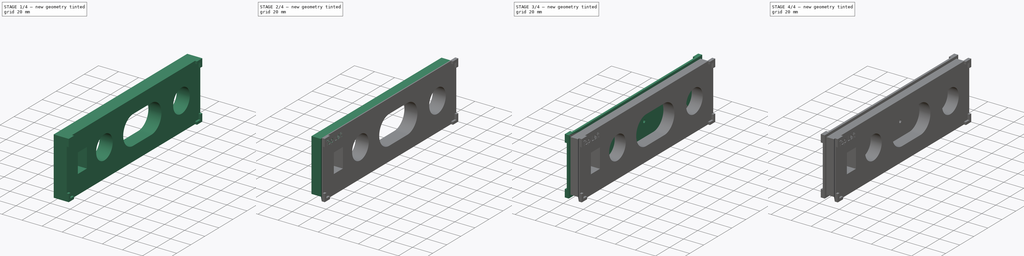
[diagram: build sequence overview — one tinted view per stage of 4, left to right]
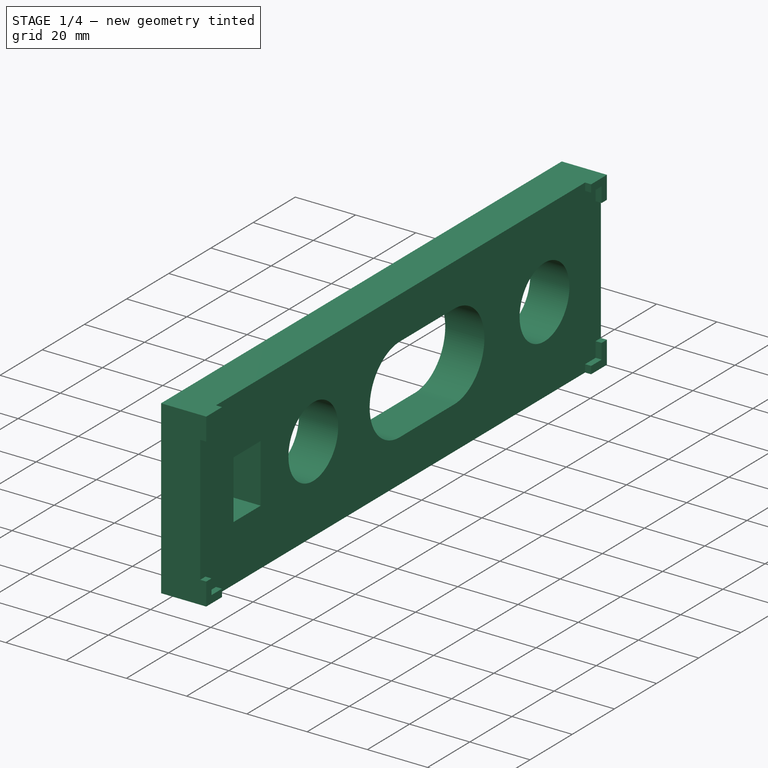
[diagram: stage 1 of 4 — iso view after this stage's code; geometry added in this stage tinted green]
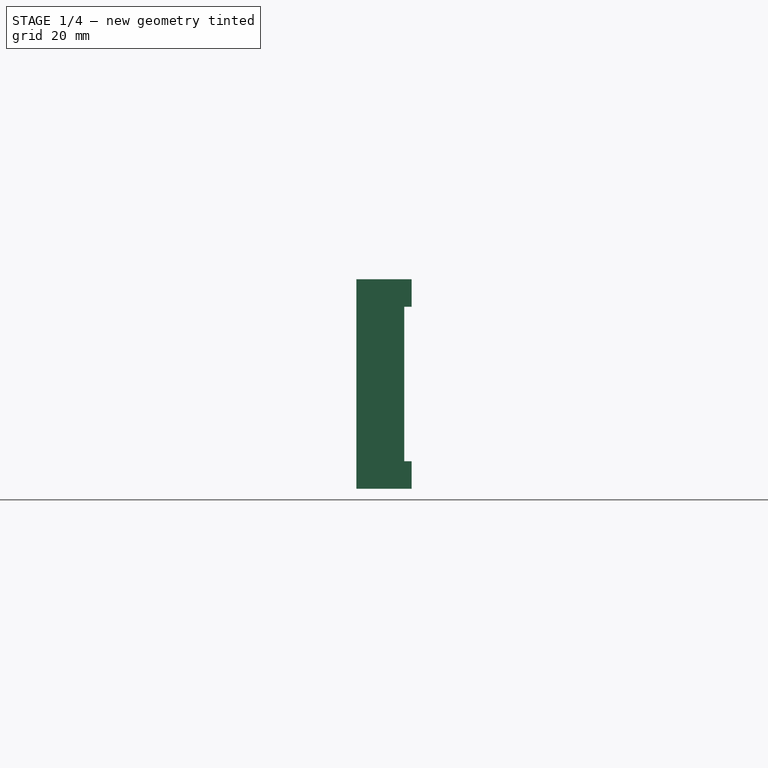
[diagram: stage 1 of 4 — front view after this stage's code; geometry added in this stage tinted green]
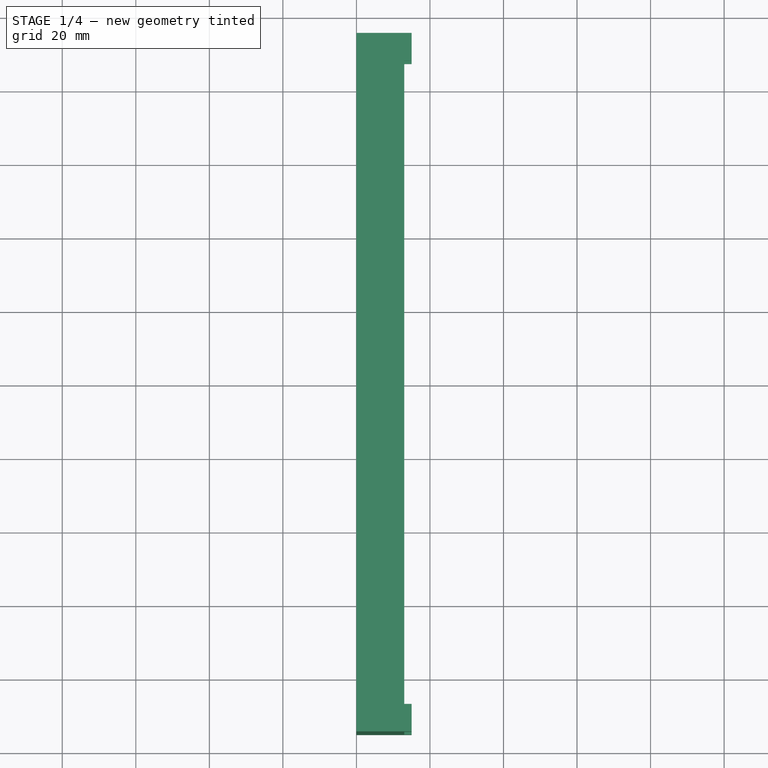
[diagram: stage 1 of 4 — top view after this stage's code; geometry added in this stage tinted green]
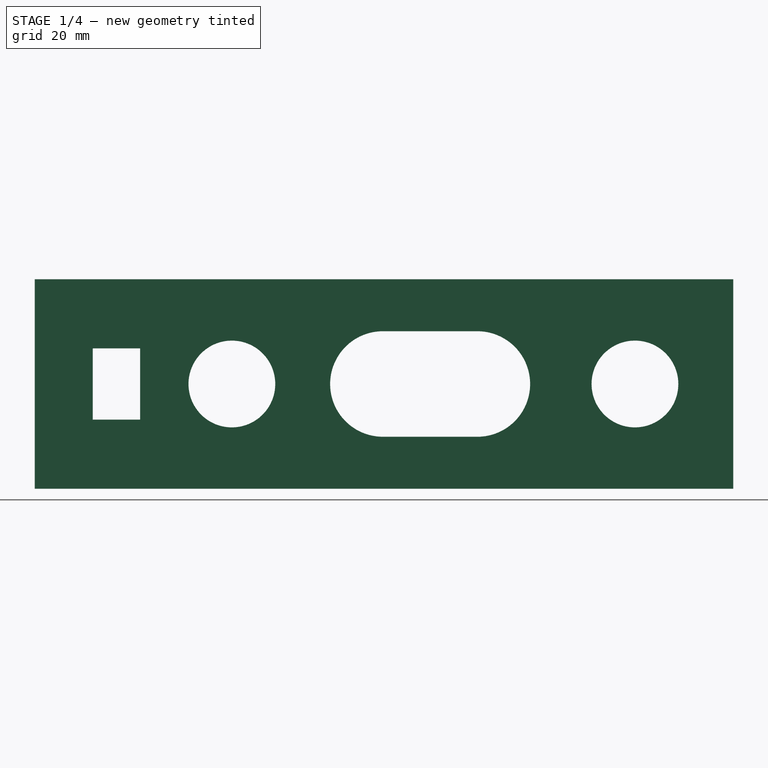
[diagram: stage 1 of 4 — right view after this stage's code; geometry added in this stage tinted green]
FCSTD DOCUMENT  (FreeCAD 0.20R29410 (Git))
Label: case-front-panel
License: All rights reserved
LicenseURL: http://en.wikipedia.org/wiki/All_rights_reserved
objects: Sketcher::SketchObject×6, PartDesign::ShapeBinder×6, PartDesign::Pad×5, PartDesign::Pocket×4, PartDesign::Body×3, Part::Part2DObjectPython×1, PartDesign::SubShapeBinder×1, PartDesign::Chamfer×1
note: 37 computed .brp shape members not serialized (recipe doc carries the construction recipe); baked Part::Feature solids carry a one-line shape summary decoded from their .brp

FEATURE [PartDesign::Body] Body001  label="DrillPlacer"
  Group = -> [ShapeBinder001,Sketch002,Pad001,Sketch003,Pad002,ShapeBinder002,Pocket001]
  Origin = -> Origin001
  Placement = pos=(3,0,0) rot=(0,0,1;0rad)
  Tip = -> Pocket001
FEATURE [PartDesign::ShapeBinder] ShapeBinder003  label="sbHoles002"
  Placement = pos=(0,0,0) rot=(0.57735,0.57735,0.57735;2.0944rad)
  Support = -> [Sketch001]
  TraceSupport = false
FEATURE [PartDesign::ShapeBinder] ShapeBinder004  label="sbHoles003"
  Placement = pos=(0,0,0) rot=(0.57735,0.57735,0.57735;2.0944rad)
  Support = -> [Sketch002]
  TraceSupport = false
FEATURE [Sketcher::SketchObject] Sketch004  label="skBase002"
  ExternalGeometry = -> [ShapeBinder004,ShapeBinder003]
  FullyConstrained = true
  MapMode = 5
  Placement = pos=(0,0,0) rot=(0.57735,0.57735,0.57735;2.0944rad)
  Support = -> [YZ_Plane002]
  sketch-geometry (14):
    g0: Circle CenterX=68.2497 CenterY=23 CenterZ=0 NormalX=0 NormalY=0 NormalZ=1 AngleXU=0 Radius=11.8
    g1: Circle CenterX=-41.3752 CenterY=23 CenterZ=0 NormalX=0 NormalY=0 NormalZ=1 AngleXU=0 Radius=11.8
    g2: ArcOfCircle CenterX=-0.303581 CenterY=23 CenterZ=0 NormalX=0 NormalY=0 NormalZ=1 AngleXU=0 Radius=14.35 StartAngle=1.5708 EndAngle=4.71239
    g3: ArcOfCircle CenterX=25.3964 CenterY=23 CenterZ=0 NormalX=0 NormalY=0 NormalZ=1 AngleXU=0 Radius=14.35 StartAngle=4.71239 EndAngle=7.85398
    g4: LineSegment StartX=-0.303581 StartY=37.35 StartZ=0 EndX=25.3964 EndY=37.35 EndZ=0
    g5: LineSegment StartX=-0.303581 StartY=8.65 StartZ=0 EndX=25.3964 EndY=8.65 EndZ=0
    g6: LineSegment StartX=-79.2293 StartY=13.3 StartZ=0 EndX=-66.3293 EndY=13.3 EndZ=0
    g7: LineSegment StartX=-66.3293 StartY=13.3 StartZ=0 EndX=-66.3293 EndY=32.7 EndZ=0
    g8: LineSegment StartX=-66.3293 StartY=32.7 StartZ=0 EndX=-79.2293 EndY=32.7 EndZ=0
    g9: LineSegment StartX=-79.2293 StartY=32.7 StartZ=0 EndX=-79.2293 EndY=13.3 EndZ=0
    g10: LineSegment StartX=-95 StartY=51.5 StartZ=0 EndX=95 EndY=51.5 EndZ=0
    g11: LineSegment StartX=95 StartY=51.5 StartZ=0 EndX=95 EndY=-5.5 EndZ=0
    g12: LineSegment StartX=95 StartY=-5.5 StartZ=0 EndX=-95 EndY=-5.5 EndZ=0
    g13: LineSegment StartX=-95 StartY=-5.5 StartZ=0 EndX=-95 EndY=51.5 EndZ=0
  constraints (34):
    c: Coincident(g0,g-8)
    c: Coincident(g1,g-5)
    c: Coincident(g2,g-6)
    c: Coincident(g2,g-6)
    c: Coincident(g2,g-6)
    c: Coincident(g3,g-7)
    c: Coincident(g3,g-7)
    c: Coincident(g3,g-7)
    c: Equal(g-8,g0)
    c: Equal(g0,g1)
    c: Coincident(g4,g2)
    c: Coincident(g4,g3)
    c: Coincident(g5,g2)
    c: Coincident(g5,g3)
    c: Coincident(g6,g7)
    c: Coincident(g7,g8)
    c: Coincident(g8,g9)
    c: Coincident(g9,g6)
    c: Horizontal(g6)
    c: Horizontal(g8)
    c: Vertical(g7)
    c: Vertical(g9)
    c: Coincident(g6,g-10)
    c: Coincident(g7,g-9)
    c: Coincident(g10,g11)
    c: Coincident(g11,g12)
    c: Coincident(g12,g13)
    c: Coincident(g13,g10)
    c: Horizontal(g10)
    c: Horizontal(g12)
    c: Vertical(g11)
    c: Vertical(g13)
    c: Coincident(g10,g-4)
    c: Coincident(g11,g-3)
FEATURE [PartDesign::Pad] Pad003  label="pdBase002"
  Direction = (1,-2e-16,3e-16)
  Length = 13
  Length2 = 10
  Placement = pos=(0,0,0) rot=(0.57735,0.57735,0.57735;2.0944rad)
  Profile = -> Sketch004
  ReferenceAxis = -> Sketch004 [N_Axis]
  Type = 0
FEATURE [PartDesign::ShapeBinder] ShapeBinder005  label="sbErgots"
  Placement = pos=(0,0,0) rot=(0.57735,0.57735,0.57735;2.0944rad)
  Support = -> [Sketch003]
  TraceSupport = false
FEATURE [PartDesign::Pad] Pad004  label="pdErgots001"
  BaseFeature = -> Pad003
  Direction = (1,0,1e-16)
  Length = 15
  Length2 = 10
  Placement = pos=(0,0,0) rot=(0.57735,0.57735,0.57735;2.0944rad)
  Profile = -> ShapeBinder005
  Refine = true
  Type = 0
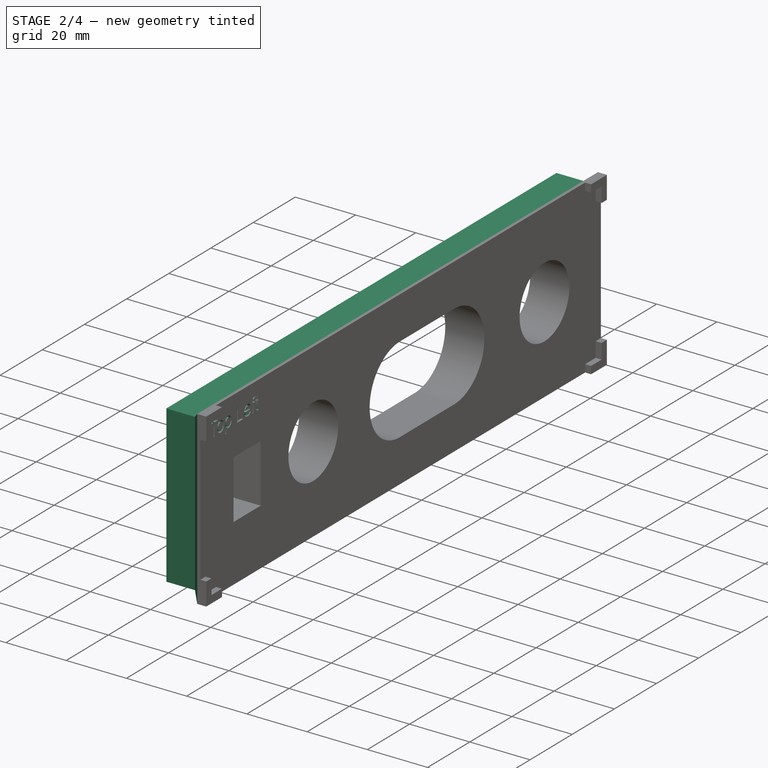
[diagram: stage 2 of 4 — iso view after this stage's code; geometry added in this stage tinted green]
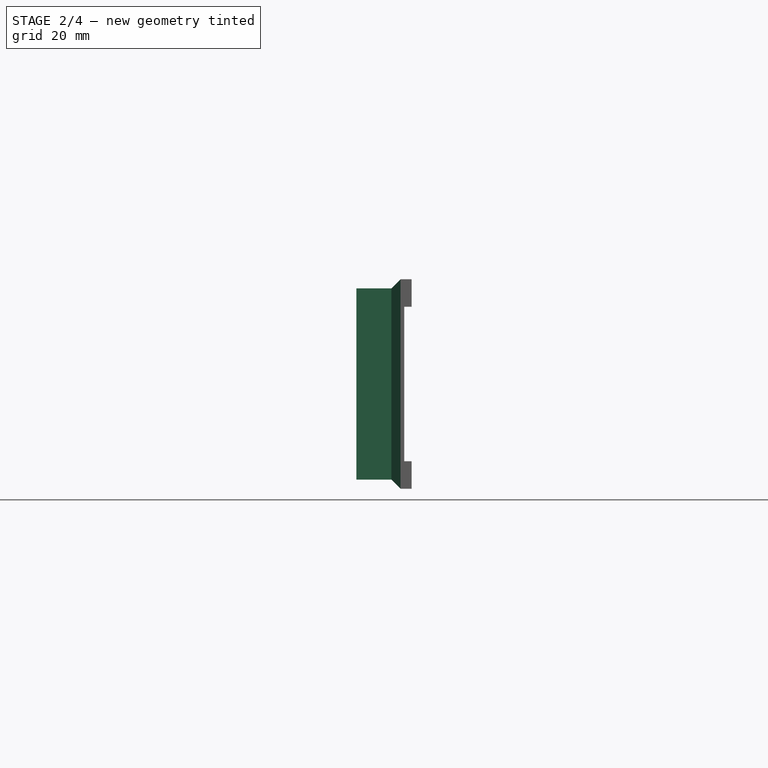
[diagram: stage 2 of 4 — front view after this stage's code; geometry added in this stage tinted green]
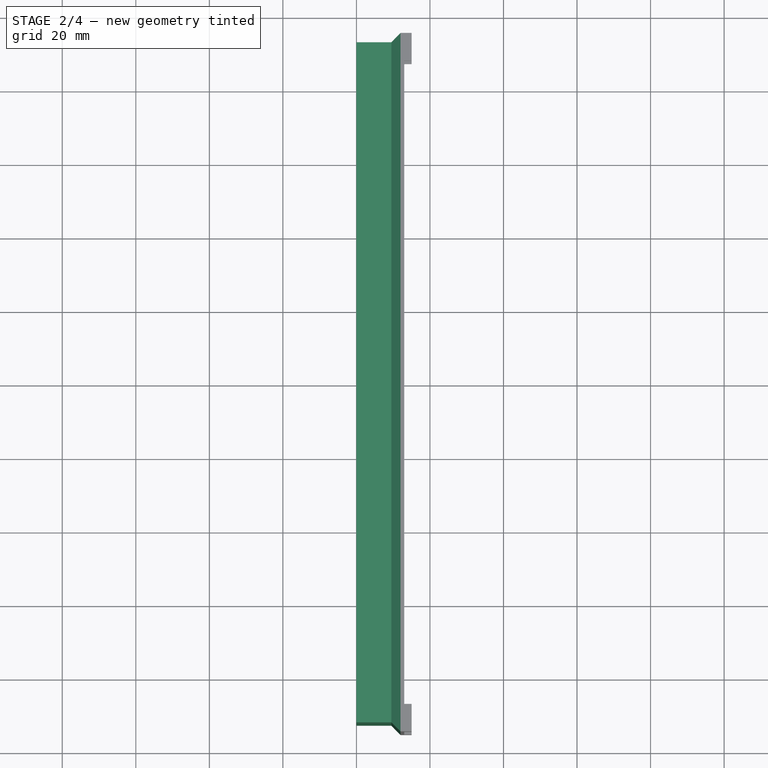
[diagram: stage 2 of 4 — top view after this stage's code; geometry added in this stage tinted green]
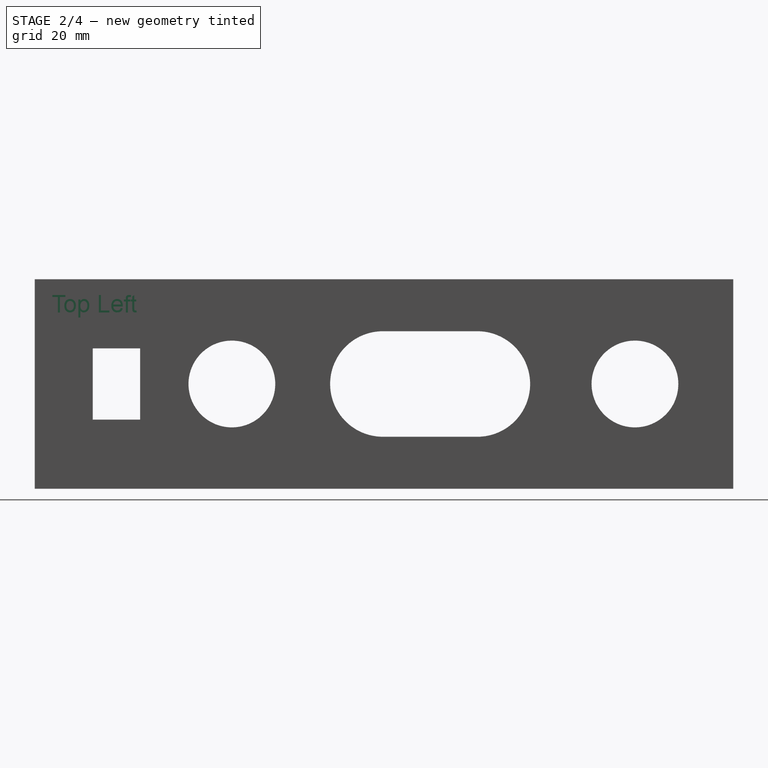
[diagram: stage 2 of 4 — right view after this stage's code; geometry added in this stage tinted green]
FEATURE [PartDesign::SubShapeBinder] Binder  label="bTopLeft"
  BindCopyOnChange = 0
  BindMode = 0
  ClaimChildren = false
  Context = -> Body002 [Binder.]
  Fuse = false
  MakeFace = true
  OffsetFill = false
  OffsetIntersection = false
  OffsetJoinType = 0
  OffsetOpenResult = false
  PartialLoad = false
  Placement = pos=(-5,0,0) rot=(0,0,1;0rad)
  Relative = true
  Support = -> [ShapeString]
  _Version = 2
FEATURE [PartDesign::Pocket] Pocket002  label="pkTopLeft001"
  BaseFeature = -> Pad004
  Direction = (-1,0,0)
  Length = 1.7
  Length2 = 5
  Placement = pos=(0,0,0) rot=(0.57735,0.57735,0.57735;2.0944rad)
  Profile = -> Binder
  Type = 0
FEATURE [Sketcher::SketchObject] Sketch005  label="skOuterProfile"
  ExternalGeometry = -> [ShapeBinder005]
  FullyConstrained = true
  MapMode = 5
  Placement = pos=(0,0,0) rot=(0.57735,0.57735,0.57735;2.0944rad)
  Support = -> [YZ_Plane002]
  sketch-geometry (10):
    g0: LineSegment StartX=-97.5 StartY=54 StartZ=0 EndX=97.5 EndY=54 EndZ=0
    g1: LineSegment StartX=97.5 StartY=54 StartZ=0 EndX=97.5 EndY=-8 EndZ=0
    g2: LineSegment StartX=97.5 StartY=-8 StartZ=0 EndX=-97.5 EndY=-8 EndZ=0
    g3: LineSegment StartX=-97.5 StartY=-8 StartZ=0 EndX=-97.5 EndY=54 EndZ=0
    g4: LineSegment StartX=-92.5 StartY=49 StartZ=0 EndX=92.5 EndY=49 EndZ=0
    g5: LineSegment StartX=92.5 StartY=49 StartZ=0 EndX=92.5 EndY=-3 EndZ=0
    g6: LineSegment StartX=92.5 StartY=-3 StartZ=0 EndX=-92.5 EndY=-3 EndZ=0
    g7: LineSegment StartX=-92.5 StartY=-3 StartZ=0 EndX=-92.5 EndY=49 EndZ=0
    g8: Circle CenterX=92.5 CenterY=49 CenterZ=0 NormalX=0 NormalY=0 NormalZ=1 AngleXU=0 Radius=5
    g9: Circle CenterX=-92.5 CenterY=-3 CenterZ=0 NormalX=0 NormalY=0 NormalZ=1 AngleXU=0 Radius=5
  constraints (26):
    c: Coincident(g0,g1)
    c: Coincident(g1,g2)
    c: Coincident(g2,g3)
    c: Coincident(g3,g0)
    c: Horizontal(g0)
    c: Horizontal(g2)
    c: Vertical(g1)
    c: Vertical(g3)
    c: Coincident(g4,g5)
    c: Coincident(g5,g6)
    c: Coincident(g6,g7)
    c: Coincident(g7,g4)
    c: Horizontal(g4)
    c: Horizontal(g6)
    c: Vertical(g5)
    c: Vertical(g7)
    c: Coincident(g6,g-4)
    c: Coincident(g4,g-3)
    c: Coincident(g8,g4)
    c: Coincident(g9,g6)
    c: Tangent(g9,g2)
    c: Tangent(g9,g3)
    c: Tangent(g8,g0)
    c: Tangent(g8,g1)
    c: Equal(g8,g9)
    c: Diameter(g8) = 10
FEATURE [PartDesign::Pocket] Pocket003  label="pkOuterProfile"
  BaseFeature = -> Pocket002
  Direction = (-1,2e-16,-3e-16)
  Length = 12
  Length2 = 5
  Placement = pos=(0,0,0) rot=(0.57735,0.57735,0.57735;2.0944rad)
  Profile = -> Sketch005
  ReferenceAxis = -> Sketch005 [N_Axis]
  Reversed = true
  Type = 0
FEATURE [PartDesign::Chamfer] Chamfer  label="chSupport"
  Angle = 45
  Base = -> Pocket003 [Edge382,Edge381,Edge379,Edge380]
  BaseFeature = -> Pocket003
  ChamferType = 0
  FlipDirection = false
  Placement = pos=(0,0,0) rot=(0.57735,0.57735,0.57735;2.0944rad)
  Size = 2.49
  Size2 = 1
  SupportTransform = false
  UseAllEdges = false
FEATURE [PartDesign::Body] Body002  label="RouterGuide"
  Group = -> [ShapeBinder003,ShapeBinder004,Sketch004,Pad003,ShapeBinder005,Pad004,Binder,Pocket002,Sketch005,Pocket003,Chamfer]
  Origin = -> Origin002
  Placement = pos=(-13,0,0) rot=(0,0,1;0rad)
  Tip = -> Chamfer
note: 1 file-system path scrubbed to <path> (originals preserved in the JSON sidecar)
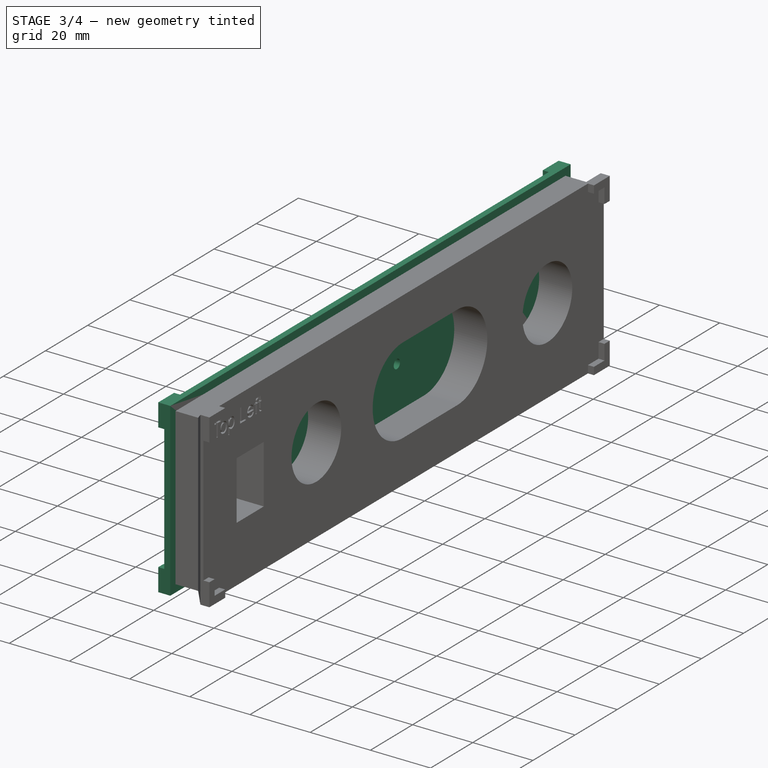
[diagram: stage 3 of 4 — iso view after this stage's code; geometry added in this stage tinted green]
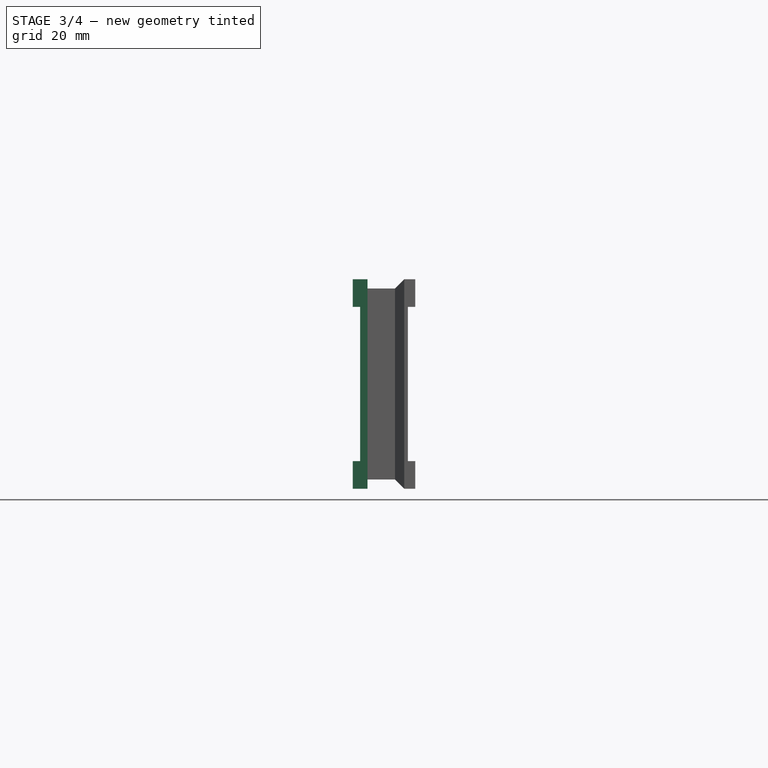
[diagram: stage 3 of 4 — front view after this stage's code; geometry added in this stage tinted green]
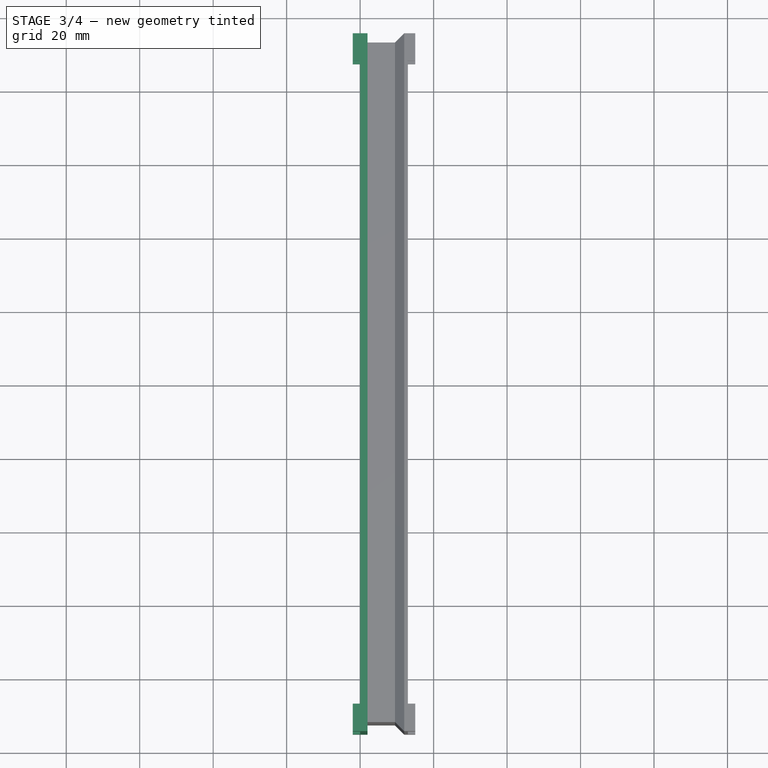
[diagram: stage 3 of 4 — top view after this stage's code; geometry added in this stage tinted green]
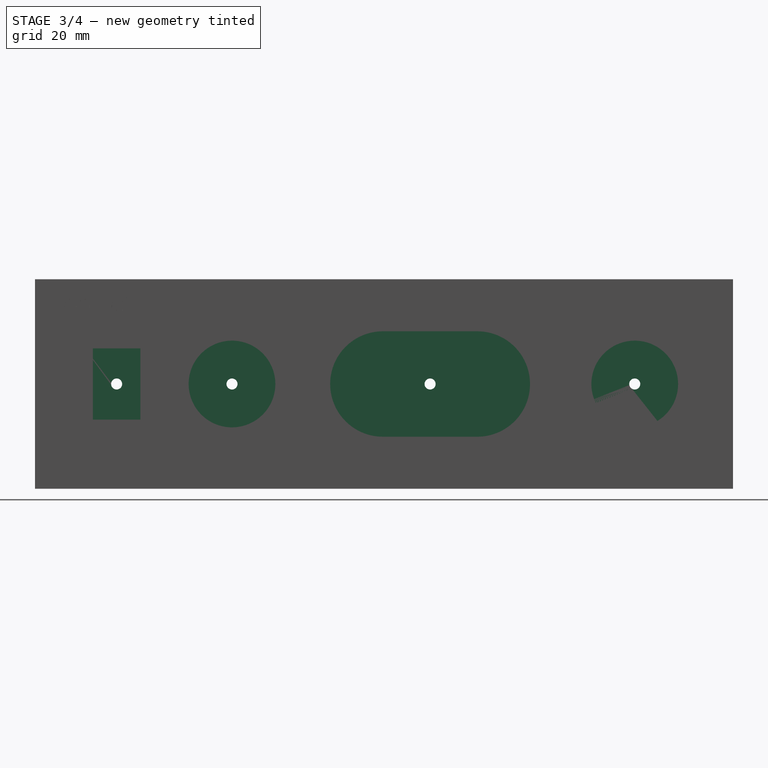
[diagram: stage 3 of 4 — right view after this stage's code; geometry added in this stage tinted green]
FEATURE [PartDesign::Body] Body
  Group = -> [Sketch001,Sketch,Pad,ShapeBinder,Pocket]
  Origin = -> Origin
  Tip = -> Pocket
FEATURE [PartDesign::ShapeBinder] ShapeBinder001  label="sbHoles001"
  Placement = pos=(0,0,0) rot=(0.57735,0.57735,0.57735;2.0944rad)
  Support = -> [Sketch001]
  TraceSupport = false
FEATURE [Sketcher::SketchObject] Sketch002  label="skBase001"
  ExternalGeometry = -> [ShapeBinder001]
  FullyConstrained = true
  MapMode = 5
  Placement = pos=(0,0,0) rot=(0.57735,0.57735,0.57735;2.0944rad)
  Support = -> [YZ_Plane001]
  sketch-geometry (20):
    g0: LineSegment StartX=-95 StartY=51.5 StartZ=0 EndX=95 EndY=51.5 EndZ=0
    g1: LineSegment StartX=95 StartY=51.5 StartZ=0 EndX=95 EndY=-5.5 EndZ=0
    g2: LineSegment StartX=95 StartY=-5.5 StartZ=0 EndX=-95 EndY=-5.5 EndZ=0
    g3: LineSegment StartX=-95 StartY=-5.5 StartZ=0 EndX=-95 EndY=51.5 EndZ=0
    g4: Circle CenterX=58.7497 CenterY=35 CenterZ=0 NormalX=0 NormalY=0 NormalZ=1 AngleXU=0 Radius=1.5
    g5: Circle CenterX=68.2497 CenterY=23 CenterZ=0 NormalX=0 NormalY=0 NormalZ=1 AngleXU=0 Radius=1.5
    g6: Circle CenterX=77.7497 CenterY=11 CenterZ=0 NormalX=0 NormalY=0 NormalZ=1 AngleXU=0 Radius=1.5
    g7: Circle CenterX=37.5464 CenterY=10.8 CenterZ=0 NormalX=0 NormalY=0 NormalZ=1 AngleXU=0 Radius=1.5
    g8: Circle CenterX=37.5464 CenterY=35.2 CenterZ=0 NormalX=0 NormalY=0 NormalZ=1 AngleXU=0 Radius=1.5
    g9: Circle CenterX=-12.4536 CenterY=35.2 CenterZ=0 NormalX=0 NormalY=0 NormalZ=1 AngleXU=0 Radius=1.5
    g10: Circle CenterX=-12.4536 CenterY=10.8 CenterZ=0 NormalX=0 NormalY=0 NormalZ=1 AngleXU=0 Radius=1.5
    g11: Circle CenterX=-31.8752 CenterY=11 CenterZ=0 NormalX=0 NormalY=0 NormalZ=1 AngleXU=0 Radius=1.5
    g12: Circle CenterX=-50.8752 CenterY=35 CenterZ=0 NormalX=0 NormalY=0 NormalZ=1 AngleXU=0 Radius=1.5
    g13: Circle CenterX=-41.3752 CenterY=23 CenterZ=0 NormalX=0 NormalY=0 NormalZ=1 AngleXU=0 Radius=1.5
    g14: LineSegment StartX=-79.2293 StartY=32.7 StartZ=0 EndX=-66.3293 EndY=13.3 EndZ=0
    g15: LineSegment StartX=-66.3293 StartY=32.7 StartZ=0 EndX=-79.2293 EndY=13.3 EndZ=0
    g16: Circle CenterX=-72.7793 CenterY=23 CenterZ=0 NormalX=0 NormalY=0 NormalZ=1 AngleXU=0 Radius=1.5
    g17: LineSegment StartX=-0.303581 StartY=37.35 StartZ=0 EndX=25.3964 EndY=8.65 EndZ=0
    g18: LineSegment StartX=25.3964 StartY=37.35 StartZ=0 EndX=-0.303581 EndY=8.65 EndZ=0
    g19: Circle CenterX=12.5464 CenterY=23 CenterZ=0 NormalX=0 NormalY=0 NormalZ=1 AngleXU=0 Radius=1.5
  constraints (45):
    c: Coincident(g0,g1)
    c: Coincident(g1,g2)
    c: Coincident(g2,g3)
    c: Coincident(g3,g0)
    c: Horizontal(g2)
    c: Vertical(g1)
    c: Vertical(g3)
    c: Distance(g0) = 190
    c: Distance(g1) = 57
    c: Symmetric(g0,g0,g-2)
    c: DistanceY(g-1,g1) = -5.5
    c: Coincident(g4,g-4)
    c: Coincident(g5,g-3)
    c: Coincident(g6,g-5)
    c: Coincident(g7,g-11)
    c: Coincident(g8,g-7)
    c: Coincident(g9,g-9)
    c: Coincident(g10,g-10)
    c: Coincident(g11,g-14)
    c: Coincident(g12,g-13)
    c: Coincident(g13,g-12)
    c: Coincident(g14,g-16)
    c: Coincident(g15,g-15)
    c: Coincident(g15,g-16)
    c: Coincident(g14,g-15)
    c: PointOnObject(g16,g14)
    c: PointOnObject(g16,g15)
    c: Coincident(g17,g-8)
    c: Coincident(g17,g-6)
    c: Coincident(g18,g-6)
    c: Coincident(g18,g-8)
    c: PointOnObject(g19,g17)
    c: PointOnObject(g19,g18)
    c: Equal(g6,g5)
    c: Equal(g6,g4)
    c: Equal(g6,g7)
    c: Equal(g6,g8)
    c: Equal(g6,g19)
    c: Equal(g6,g9)
    c: Equal(g6,g10)
    c: Equal(g6,g11)
    c: Equal(g6,g13)
    c: Equal(g6,g12)
    c: Equal(g6,g16)
    c: Diameter(g6) = 3
FEATURE [PartDesign::Pad] Pad001  label="pdBase001"
  Direction = (1,-2e-16,3e-16)
  Length = 2
  Length2 = 10
  Placement = pos=(0,0,0) rot=(0.57735,0.57735,0.57735;2.0944rad)
  Profile = -> Sketch002
  ReferenceAxis = -> Sketch002 [N_Axis]
  Type = 0
FEATURE [Sketcher::SketchObject] Sketch003  label="skErgots"
  ExternalGeometry = -> [Sketch002]
  FullyConstrained = true
  MapMode = 5
  Placement = pos=(0,0,0) rot=(0.57735,0.57735,0.57735;2.0944rad)
  Support = -> [YZ_Plane001]
  sketch-geometry (24):
    g0: LineSegment StartX=95 StartY=51.5 StartZ=0 EndX=95 EndY=44 EndZ=0
    g1: LineSegment StartX=95 StartY=44 StartZ=0 EndX=92.5 EndY=44 EndZ=0
    g2: LineSegment StartX=92.5 StartY=44 StartZ=0 EndX=92.5 EndY=49 EndZ=0
    g3: LineSegment StartX=92.5 StartY=49 StartZ=0 EndX=87.5 EndY=49 EndZ=0
    g4: LineSegment StartX=87.5 StartY=49 StartZ=0 EndX=87.5 EndY=51.5 EndZ=0
    g5: LineSegment StartX=87.5 StartY=51.5 StartZ=0 EndX=95 EndY=51.5 EndZ=0
    g6: LineSegment StartX=-95 StartY=51.5 StartZ=0 EndX=-87.5 EndY=51.5 EndZ=0
    g7: LineSegment StartX=-87.5 StartY=51.5 StartZ=0 EndX=-87.5 EndY=49 EndZ=0
    g8: LineSegment StartX=-87.5 StartY=49 StartZ=0 EndX=-92.5 EndY=49 EndZ=0
    g9: LineSegment StartX=-92.5 StartY=49 StartZ=0 EndX=-92.5 EndY=44 EndZ=0
    g10: LineSegment StartX=-92.5 StartY=44 StartZ=0 EndX=-95 EndY=44 EndZ=0
    g11: LineSegment StartX=-95 StartY=44 StartZ=0 EndX=-95 EndY=51.5 EndZ=0
    g12: LineSegment StartX=-95 StartY=-5.5 StartZ=0 EndX=-95 EndY=2 EndZ=0
    g13: LineSegment StartX=-95 StartY=2 StartZ=0 EndX=-92.5 EndY=2 EndZ=0
    g14: LineSegment StartX=-92.5 StartY=2 StartZ=0 EndX=-92.5 EndY=-3 EndZ=0
    g15: LineSegment StartX=-92.5 StartY=-3 StartZ=0 EndX=-87.5 EndY=-3 EndZ=0
    g16: LineSegment StartX=-87.5 StartY=-3 StartZ=0 EndX=-87.5 EndY=-5.5 EndZ=0
    g17: LineSegment StartX=-87.5 StartY=-5.5 StartZ=0 EndX=-95 EndY=-5.5 EndZ=0
    g18: LineSegment StartX=95 StartY=-5.5 StartZ=0 EndX=87.5 EndY=-5.5 EndZ=0
    g19: LineSegment StartX=87.5 StartY=-5.5 StartZ=0 EndX=87.5 EndY=-3 EndZ=0
    g20: LineSegment StartX=87.5 StartY=-3 StartZ=0 EndX=92.5 EndY=-3 EndZ=0
    g21: LineSegment StartX=92.5 StartY=-3 StartZ=0 EndX=92.5 EndY=2 EndZ=0
    g22: LineSegment StartX=92.5 StartY=2 StartZ=0 EndX=95 EndY=2 EndZ=0
    g23: LineSegment StartX=95 StartY=2 StartZ=0 EndX=95 EndY=-5.5 EndZ=0
  constraints (68):
    c: Coincident(g-3,g0)
    c: PointOnObject(g0,g-3)
    c: Coincident(g0,g1)
    c: Coincident(g1,g2)
    c: Vertical(g2)
    c: Coincident(g2,g3)
    c: Horizontal(g3)
    c: Coincident(g3,g4)
    c: Vertical(g4)
    c: Coincident(g4,g5)
    c: Coincident(g5,g0)
    c: Horizontal(g5)
    c: Coincident(g-4,g6)
    c: Horizontal(g6)
    c: Coincident(g6,g7)
    c: Vertical(g7)
    c: Coincident(g7,g8)
    c: Horizontal(g8)
    c: Coincident(g8,g9)
    c: Vertical(g9)
    c: Coincident(g9,g10)
    c: PointOnObject(g10,g-4)
    c: Coincident(g10,g11)
    c: Coincident(g-4,g12)
    c: PointOnObject(g12,g-4)
    c: Coincident(g12,g13)
    c: Horizontal(g13)
    c: Coincident(g13,g14)
    c: Vertical(g14)
    c: Coincident(g14,g15)
    c: Horizontal(g15)
    c: Coincident(g15,g16)
    c: Coincident(g16,g17)
    c: Coincident(g17,g12)
    c: Horizontal(g17)
    c: Coincident(g-3,g18)
    c: Horizontal(g18)
    c: Coincident(g18,g19)
    c: Vertical(g19)
    c: Coincident(g19,g20)
    c: Horizontal(g20)
    c: Coincident(g20,g21)
    c: Vertical(g21)
    c: Coincident(g21,g22)
    c: PointOnObject(g22,g-3)
    c: Horizontal(g22)
    c: Coincident(g22,g23)
    c: Coincident(g23,g18)
    c: Horizontal(g1)
    c: Coincident(g11,g6)
    c: Horizontal(g10)
    c: Vertical(g16)
    c: Equal(g13,g16)
    c: Equal(g16,g10)
    c: Equal(g10,g7)
    c: Equal(g7,g4)
    c: Equal(g4,g1)
    c: Equal(g1,g22)
    c: Equal(g22,g19)
    c: Equal(g21,g20)
    c: Equal(g20,g2)
    c: Equal(g2,g3)
    c: Equal(g3,g8)
    c: Equal(g8,g9)
    c: Equal(g9,g14)
    c: Equal(g14,g15)
    c: Distance(g7) = 2.5
    c: Distance(g8) = 5
FEATURE [PartDesign::Pad] Pad002  label="pdErgots"
  BaseFeature = -> Pad001
  Direction = (1,-2e-16,3e-16)
  Length = 2
  Length2 = 10
  Placement = pos=(0,0,0) rot=(0.57735,0.57735,0.57735;2.0944rad)
  Profile = -> Sketch003
  ReferenceAxis = -> Sketch003 [N_Axis]
  Refine = true
  Reversed = true
  Type = 0
FEATURE [Part::Part2DObjectPython] ShapeString  label="ssTopLeft"  # Draft 2D object (typed FeaturePython)
  FontFile = <path>
  MakeFace = true
  Placement = pos=(5.7,-90.33,42.46) rot=(0.57735,0.57735,0.57735;2.0944rad)
  Size = 5
  String = Top Left
  Tracking = 0
FEATURE [PartDesign::ShapeBinder] ShapeBinder002  label="sbTopLeft"
  Placement = pos=(5.7,-90.33,42.46) rot=(0.57735,0.57735,0.57735;2.0944rad)
  Support = -> [ShapeString]
  TraceSupport = false
FEATURE [PartDesign::Pocket] Pocket001  label="pkTopLeft"
  BaseFeature = -> Pad002
  Direction = (-1,0,0)
  Length = 4.5
  Length2 = 5
  Placement = pos=(0,0,0) rot=(0.57735,0.57735,0.57735;2.0944rad)
  Profile = -> ShapeBinder002
  Type = 0
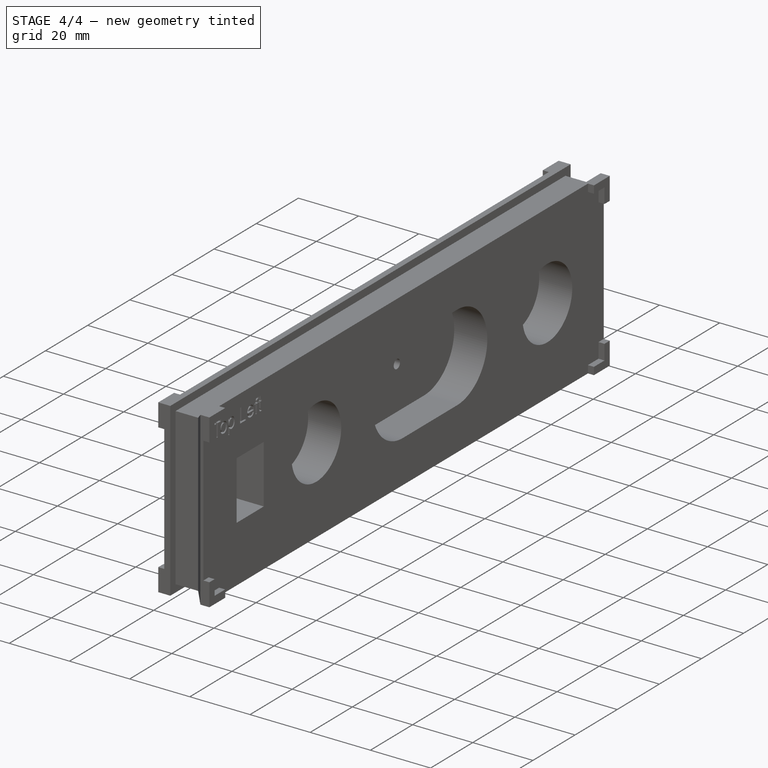
[diagram: stage 4 of 4 — iso view after this stage's code; geometry added in this stage tinted green]
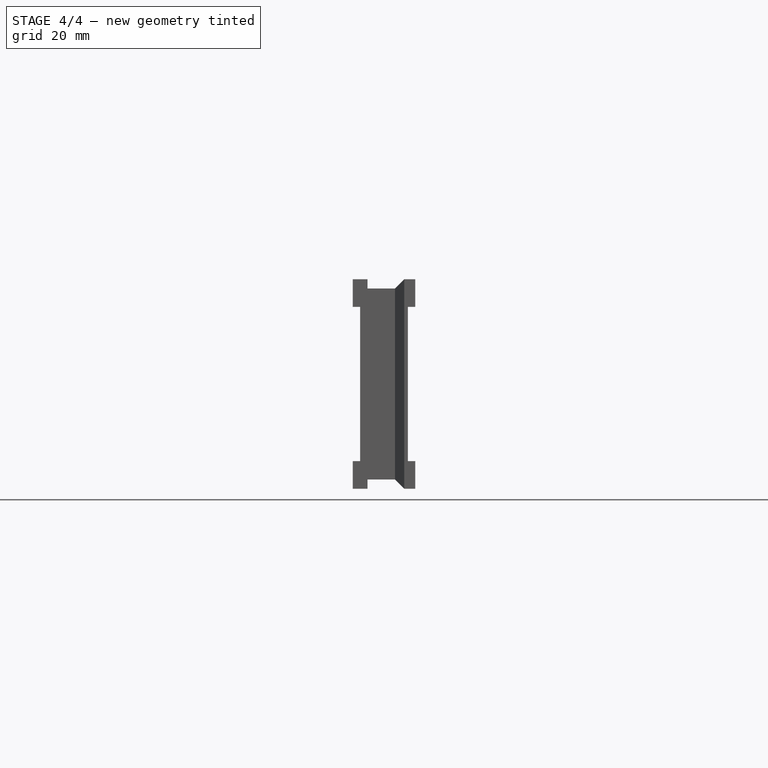
[diagram: stage 4 of 4 — front view after this stage's code; geometry added in this stage tinted green]
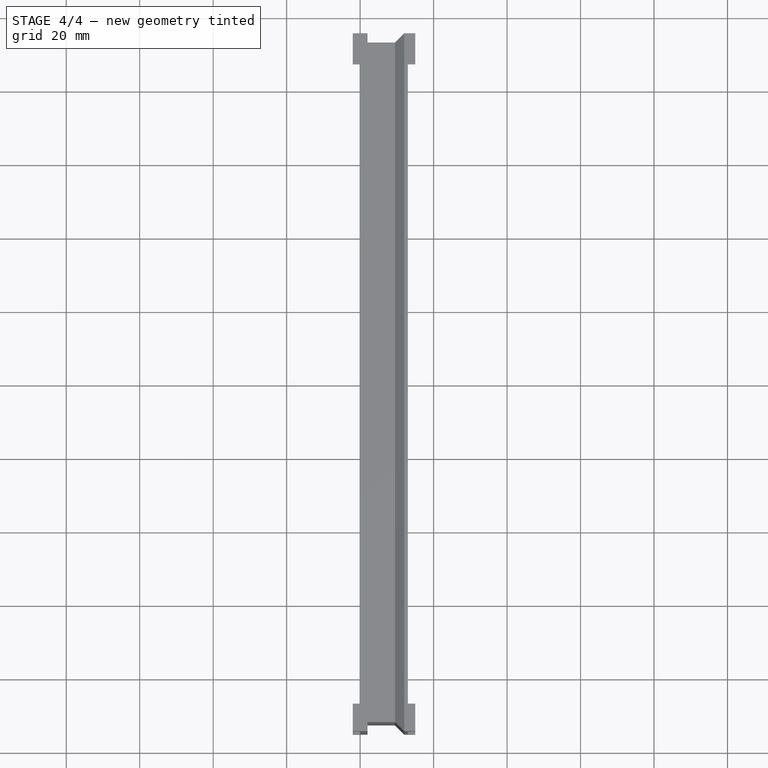
[diagram: stage 4 of 4 — top view after this stage's code; geometry added in this stage tinted green]
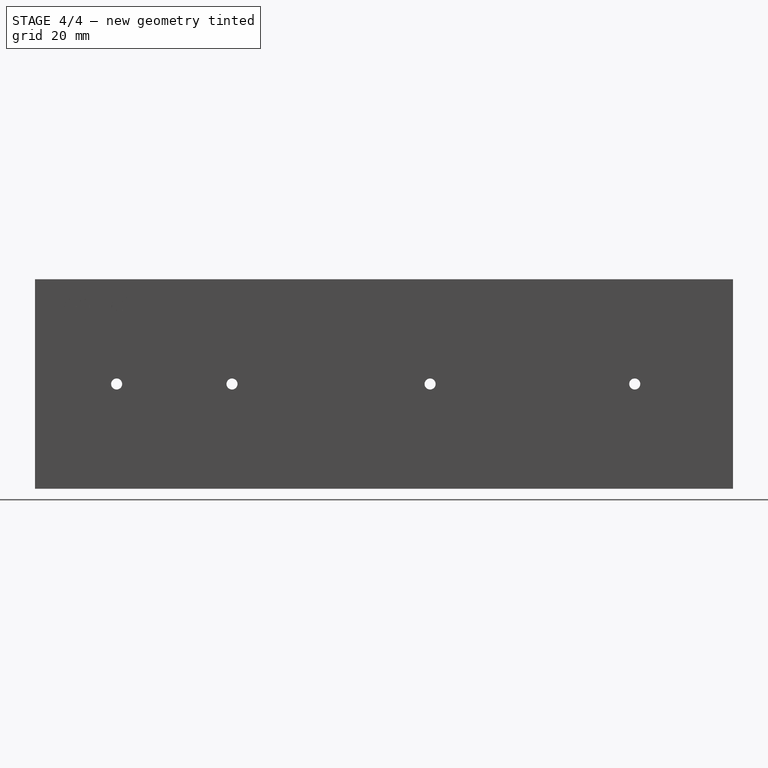
[diagram: stage 4 of 4 — right view after this stage's code; geometry added in this stage tinted green]
FEATURE [Sketcher::SketchObject] Sketch001  label="skHoles"
  FullyConstrained = false
  MapMode = 5
  Placement = pos=(0,0,0) rot=(0.57735,0.57735,0.57735;2.0944rad)
  Support = -> [YZ_Plane]
  sketch-geometry (20):
    g0: Circle CenterX=68.2497 CenterY=23 CenterZ=0 NormalX=0 NormalY=0 NormalZ=1 AngleXU=0 Radius=11.8
    g1: Circle CenterX=58.7497 CenterY=35 CenterZ=0 NormalX=0 NormalY=0 NormalZ=1 AngleXU=0 Radius=1.55
    g2: Circle CenterX=77.7497 CenterY=11 CenterZ=0 NormalX=0 NormalY=0 NormalZ=1 AngleXU=0 Radius=1.55
    g3: ArcOfCircle CenterX=25.3964 CenterY=23 CenterZ=0 NormalX=0 NormalY=0 NormalZ=1 AngleXU=0 Radius=14.35 StartAngle=4.71239 EndAngle=7.85398
    g4: ArcOfCircle CenterX=-0.303581 CenterY=23 CenterZ=0 NormalX=0 NormalY=0 NormalZ=1 AngleXU=0 Radius=14.35 StartAngle=1.5708 EndAngle=4.71239
    g5: Circle CenterX=-41.3752 CenterY=23 CenterZ=0 NormalX=0 NormalY=0 NormalZ=1 AngleXU=0 Radius=11.8
    g6: Circle CenterX=-31.8752 CenterY=11 CenterZ=0 NormalX=0 NormalY=0 NormalZ=1 AngleXU=0 Radius=1.55
    g7: Circle CenterX=-50.8752 CenterY=35 CenterZ=0 NormalX=0 NormalY=0 NormalZ=1 AngleXU=0 Radius=1.55
    g8: LineSegment StartX=-79.2293 StartY=32.7 StartZ=0 EndX=-66.3293 EndY=32.7 EndZ=0
    g9: LineSegment StartX=-66.3293 StartY=32.7 StartZ=0 EndX=-66.3293 EndY=13.3 EndZ=0
    g10: LineSegment StartX=-66.3293 StartY=13.3 StartZ=0 EndX=-79.2293 EndY=13.3 EndZ=0
    g11: LineSegment StartX=-79.2293 StartY=13.3 StartZ=0 EndX=-79.2293 EndY=32.7 EndZ=0
    g12: LineSegment StartX=-0.303581 StartY=37.35 StartZ=0 EndX=25.3964 EndY=37.35 EndZ=0
    g13: LineSegment StartX=-0.303581 StartY=8.65 StartZ=0 EndX=25.3964 EndY=8.65 EndZ=0
    g14: LineSegment StartX=92.5 StartY=23 StartZ=0 EndX=-92.5 EndY=23 EndZ=0
    g15: Circle CenterX=-12.4536 CenterY=35.2 CenterZ=0 NormalX=0 NormalY=0 NormalZ=1 AngleXU=0 Radius=1.6
    g16: Circle CenterX=-12.4536 CenterY=10.8 CenterZ=0 NormalX=0 NormalY=0 NormalZ=1 AngleXU=0 Radius=1.6
    g17: Circle CenterX=37.5464 CenterY=10.8 CenterZ=0 NormalX=0 NormalY=0 NormalZ=1 AngleXU=0 Radius=1.6
    g18: Circle CenterX=37.5464 CenterY=35.2 CenterZ=0 NormalX=0 NormalY=0 NormalZ=1 AngleXU=0 Radius=1.6
    g19: GeomPoint X=12.5464 Y=23 Z=0
  constraints (48):
    c: Coincident(g8,g9)
    c: Coincident(g9,g10)
    c: Coincident(g10,g11)
    c: Coincident(g11,g8)
    c: Horizontal(g8)
    c: Horizontal(g10)
    c: Vertical(g11)
    c: PointOnObject(g3,g14)
    c: PointOnObject(g4,g14)
    c: PointOnObject(g5,g14)
    c: Symmetric(g8,g9,g14)
    c: PointOnObject(g0,g14)
    c: Symmetric(g1,g2,g0)
    c: Symmetric(g7,g6,g5)
    c: Tangent(g12,g4) = 1.5708
    c: Tangent(g13,g4) = -1.5708
    c: Tangent(g13,g3) = -1.5708
    c: Tangent(g12,g3) = 1.5708
    c: Equal(g3,g4)
    c: Diameter(g4) = 28.7
    c: Distance(g3,g4) = 25.7
    c: Equal(g15,g16)
    c: Equal(g15,g17)
    c: Equal(g15,g18)
    c: Diameter(g15) = 3.2
    c: Distance(g17,g18) = 24.4
    c: Horizontal(g15,g18)
    c: Horizontal(g17,g16)
    c: Vertical(g15,g16)
    c: Distance(g16,g17) = 50
    c: Symmetric(g15,g17,g19)
    c: Vertical(g17,g18)
    c: Symmetric(g3,g4,g19)
    c: DistanceY(g-1,g14) = 23
    c: DistanceX(g7,g6) = 19
    c: DistanceY(g6,g7) = 24
    c: Equal(g6,g7)
    c: Diameter(g6) = 3.1
    c: Diameter(g5) = 23.6
    c: Equal(g5,g0)
    c: Equal(g1,g2)
    c: Equal(g2,g6)
    c: DistanceY(g2,g1) = 24
    c: DistanceX(g1,g2) = 19
    c: Distance(g14) = 185
    c: Symmetric(g14,g14,g-2)
    c: Distance(g8) = 12.9
    c: Distance(g9) = 19.4
FEATURE [Sketcher::SketchObject] Sketch  label="skBase"
  ExternalGeometry = -> [Sketch001]
  FullyConstrained = true
  MapMode = 5
  Placement = pos=(0,0,0) rot=(0.57735,0.57735,0.57735;2.0944rad)
  Support = -> [YZ_Plane]
  sketch-geometry (4):
    g0: LineSegment StartX=-92.5 StartY=49 StartZ=0 EndX=92.5 EndY=49 EndZ=0
    g1: LineSegment StartX=92.5 StartY=49 StartZ=0 EndX=92.5 EndY=-3 EndZ=0
    g2: LineSegment StartX=92.5 StartY=-3 StartZ=0 EndX=-92.5 EndY=-3 EndZ=0
    g3: LineSegment StartX=-92.5 StartY=-3 StartZ=0 EndX=-92.5 EndY=49 EndZ=0
  constraints (11):
    c: Coincident(g0,g1)
    c: Coincident(g2,g3)
    c: Coincident(g3,g0)
    c: Horizontal(g2)
    c: Vertical(g1)
    c: Vertical(g3)
    c: Distance(g1) = 52
    c: Coincident(g2,g1)
    c: DistanceY(g-1,g1) = -3
    c: Symmetric(g0,g0,g-2)
    c: Distance(g0) = 185
FEATURE [PartDesign::Pad] Pad  label="pdBase"
  Direction = (1,-2e-16,3e-16)
  Length = 3
  Length2 = 10
  Placement = pos=(0,0,0) rot=(0.57735,0.57735,0.57735;2.0944rad)
  Profile = -> Sketch
  ReferenceAxis = -> Sketch [N_Axis]
  Type = 0
FEATURE [PartDesign::ShapeBinder] ShapeBinder  label="sbHoles"
  Placement = pos=(0,0,0) rot=(0.57735,0.57735,0.57735;2.0944rad)
  Support = -> [Sketch001]
  TraceSupport = false
FEATURE [PartDesign::Pocket] Pocket  label="pkHoles"
  BaseFeature = -> Pad
  Direction = (-1,0,-1e-16)
  Length = 5
  Length2 = 5
  Placement = pos=(0,0,0) rot=(0.57735,0.57735,0.57735;2.0944rad)
  Profile = -> ShapeBinder
  Reversed = true
  Type = 0
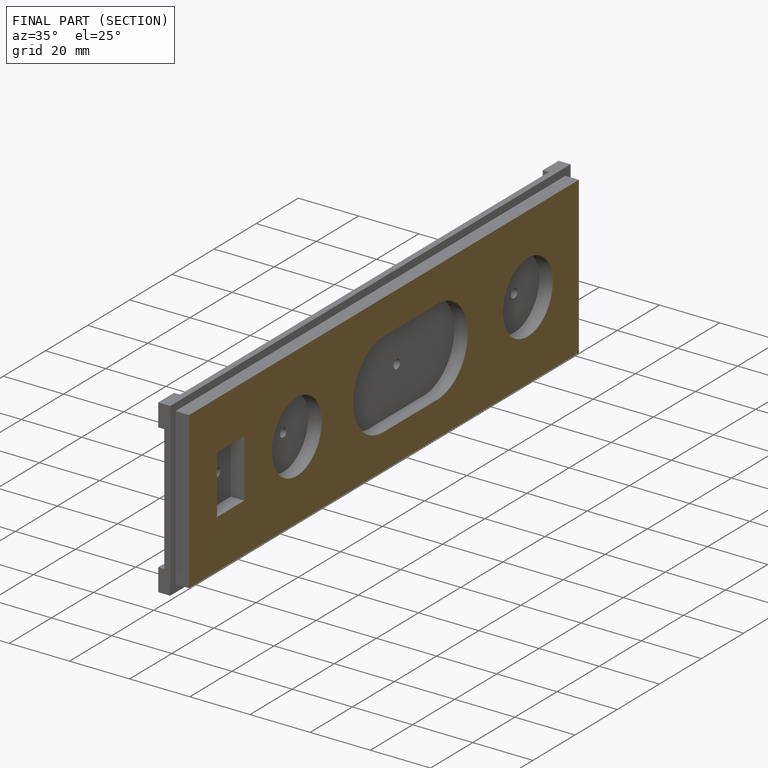
[diagram: finished part — half-section view (interior)]
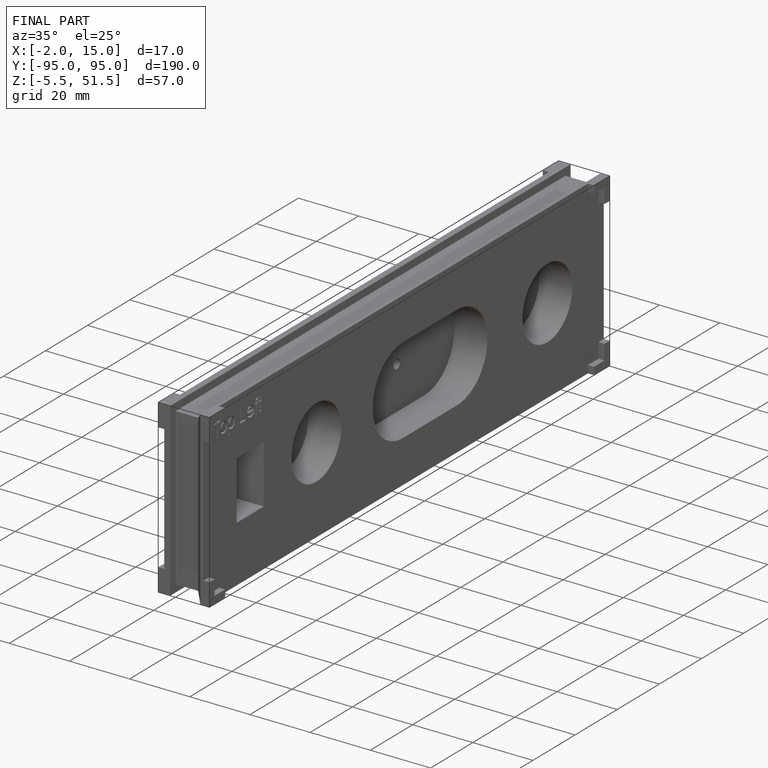
[diagram: finished part — iso view with bounding-box wireframe]
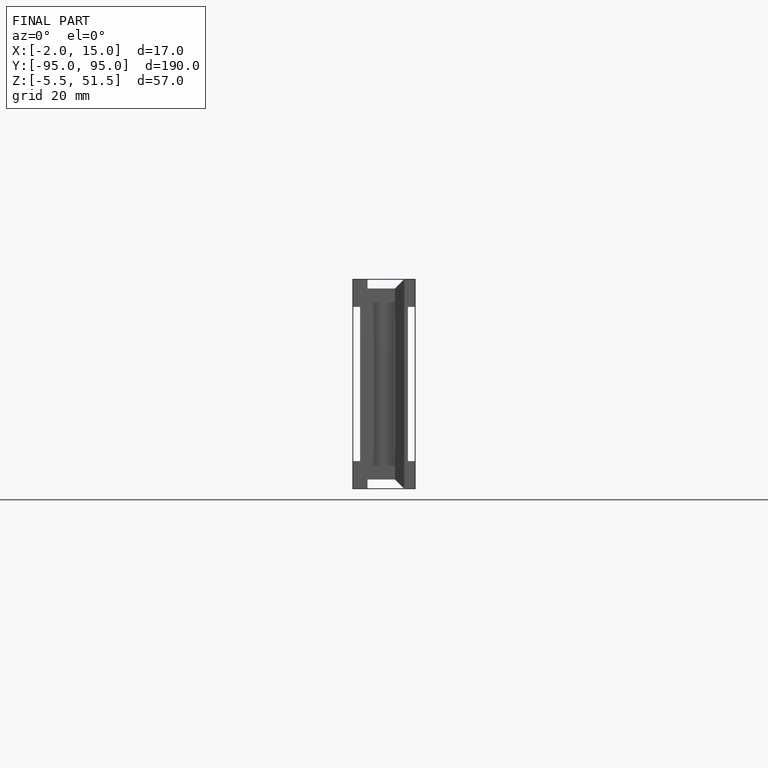
[diagram: finished part — front view with bounding-box wireframe]
